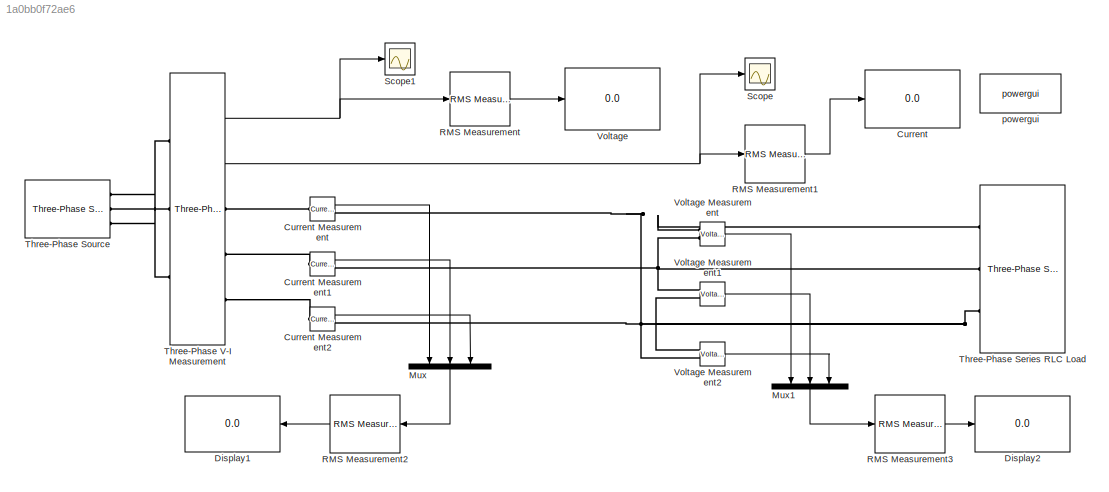
MODEL slx_1a0bb0f72ae6
KIND model
CONFIG AbsTol = auto
CONFIG EnableMultiTasking = off
CONFIG FixedStep = auto
CONFIG MaxStep = auto
CONFIG MinStep = auto
CONFIG RelTol = 1e-3
CONFIG SampleTimeConstraint = Unconstrained
CONFIG Solver = VariableStepAuto
CONFIG SolverName = VariableStepAuto
CONFIG StartTime = 0.0
CONFIG StopTime = 10.0
BLOCK [Display] Current
  Decimation = 1
  Ports = [1]
BLOCK [Reference] Current Measurement  REF=powerlib/Measurements/Current Measurement
  Ports = [0, 1, 0, 0, 0, 1, 1]
  SourceBlock = powerlib/Measurements/Current Measurement
  SourceProductBaseCode = PS
  SourceType = Current Measurement
  UserDataPersistent = on
BLOCK [Reference] Current Measurement1  REF=powerlib/Measurements/Current Measurement
  Ports = [0, 1, 0, 0, 0, 1, 1]
  SourceBlock = powerlib/Measurements/Current Measurement
  SourceProductBaseCode = PS
  SourceType = Current Measurement
  UserDataPersistent = on
BLOCK [Reference] Current Measurement2  REF=powerlib/Measurements/Current Measurement
  Ports = [0, 1, 0, 0, 0, 1, 1]
  SourceBlock = powerlib/Measurements/Current Measurement
  SourceProductBaseCode = PS
  SourceType = Current Measurement
  UserDataPersistent = on
BLOCK [Display] Display1
  Decimation = 1
  Ports = [1]
BLOCK [Display] Display2
  Decimation = 1
  Ports = [1]
BLOCK [Mux] Mux
  DisplayOption = bar
  Inputs = 3
  NameLocation = left
  Ports = [3, 1]
BLOCK [Mux] Mux1
  DisplayOption = bar
  Inputs = 3
  NameLocation = right
  Ports = [3, 1]
BLOCK [Reference] RMS Measurement  REF=eeRmsMeasurement/RMS
Measurement
  Ports = [1, 1]
  SourceBlock = eeRmsMeasurement/RMS\nMeasurement
  SourceProductBaseCode = PS
  SourceType = RMS Measurement
BLOCK [Reference] RMS Measurement1  REF=eeRmsMeasurement/RMS
Measurement
  Ports = [1, 1]
  SourceBlock = eeRmsMeasurement/RMS\nMeasurement
  SourceProductBaseCode = PS
  SourceType = RMS Measurement
BLOCK [Reference] RMS Measurement2  REF=eeRmsMeasurement/RMS
Measurement
  Ports = [1, 1]
  SourceBlock = eeRmsMeasurement/RMS\nMeasurement
  SourceProductBaseCode = PS
  SourceType = RMS Measurement
BLOCK [Reference] RMS Measurement3  REF=eeRmsMeasurement/RMS
Measurement
  Ports = [1, 1]
  SourceBlock = eeRmsMeasurement/RMS\nMeasurement
  SourceProductBaseCode = PS
  SourceType = RMS Measurement
BLOCK [Scope] Scope
  Floating = off
  NumInputPorts = 1
  Ports = [1]
  ScopeSpecificationString = Simulink.scopes.TimeScopeBlockCfg('CurrentConfiguration', extmgr.ConfigurationSet(extmgr.Configuration('Core','General UI',true),extmgr.Configuration('Core','Source UI',true),extmgr.Configuration('Sources','WiredSimulink',true,'DataLoggingVariableName','ScopeData1'),extmgr.Configuration('Visuals','Time Domain',true,'SerializedDisplays',{struct('MinYLimReal','-1134.28061','MaxYLimReal','1133.82876'...<+1593ch>
BLOCK [Scope] Scope1
  Floating = off
  NumInputPorts = 1
  Ports = [1]
  ScopeSpecificationString = Simulink.scopes.TimeScopeBlockCfg('CurrentConfiguration', extmgr.ConfigurationSet(extmgr.Configuration('Core','General UI',true),extmgr.Configuration('Core','Source UI',true),extmgr.Configuration('Sources','WiredSimulink',true),extmgr.Configuration('Visuals','Time Domain',true,'SerializedDisplays',{struct('MinYLimReal','-24917.33297','MaxYLimReal','24917.33301','YLabelReal','','MinYLimMag','   0.0...<+1564ch>
BLOCK [Reference] Three-Phase Series RLC Load  REF=powerlib/Elements/Three-Phase
Series RLC Load
  AttributesFormatString = \n
  Ports = [0, 0, 0, 0, 0, 3]
  SourceBlock = powerlib/Elements/Three-Phase\nSeries RLC Load
  SourceProductBaseCode = PS
  SourceType = Three-Phase Series RLC Load
BLOCK [Reference] Three-Phase Source  REF=powerlib/Electrical
Sources/Three-Phase Source
  Ports = [0, 0, 0, 0, 0, 0, 3]
  SourceBlock = powerlib/Electrical\nSources/Three-Phase Source
  SourceProductBaseCode = PS
  SourceType = Three-Phase Source
BLOCK [Reference] Three-Phase V-I Measurement  REF=powerlib/Measurements/Three-Phase
V-I Measurement
  Ports = [0, 2, 0, 0, 0, 3, 3]
  SourceBlock = powerlib/Measurements/Three-Phase\nV-I Measurement
  SourceProductBaseCode = PS
  SourceType = Three-Phase VI Measurement
BLOCK [Display] Voltage
  Decimation = 1
  Ports = [1]
BLOCK [Reference] Voltage Measurement  REF=powerlib/Measurements/Voltage Measurement
  Ports = [0, 1, 0, 0, 0, 2]
  SourceBlock = powerlib/Measurements/Voltage Measurement
  SourceProductBaseCode = PS
  SourceType = Voltage Measurement
  UserDataPersistent = on
BLOCK [Reference] Voltage Measurement1  REF=powerlib/Measurements/Voltage Measurement
  Ports = [0, 1, 0, 0, 0, 2]
  SourceBlock = powerlib/Measurements/Voltage Measurement
  SourceProductBaseCode = PS
  SourceType = Voltage Measurement
  UserDataPersistent = on
BLOCK [Reference] Voltage Measurement2  REF=powerlib/Measurements/Voltage Measurement
  Ports = [0, 1, 0, 0, 0, 2]
  SourceBlock = powerlib/Measurements/Voltage Measurement
  SourceProductBaseCode = PS
  SourceType = Voltage Measurement
  UserDataPersistent = on
BLOCK [Reference] powergui  REF=powerlib/powergui
  Ports = []
  Priority = 1
  SourceBlock = powerlib/powergui
  SourceProductBaseCode = PS
  SourceType = PSB option menu block
LINE Current Measurement1:1 -> Mux:2
LINE Current Measurement2:1 -> Mux:3
LINE Current Measurement:1 -> Mux:1
LINE Mux1:1 -> RMS Measurement3:1
LINE Mux:1 -> RMS Measurement2:1
LINE RMS Measurement1:1 -> Current:1
LINE RMS Measurement2:1 -> Display1:1
LINE RMS Measurement3:1 -> Display2:1
LINE RMS Measurement:1 -> Voltage:1
NET Three-Phase V-I Measurement:1 -> RMS Measurement:1, Scope1:1
NET Three-Phase V-I Measurement:2 -> RMS Measurement1:1, Scope:1
LINE Voltage Measurement1:1 -> Mux1:2
LINE Voltage Measurement2:1 -> Mux1:3
LINE Voltage Measurement:1 -> Mux1:1
PLINE Current Measurement1:LConn1 -- Three-Phase V-I Measurement:RConn2
PNET net1: Current Measurement1:RConn1 -- Three-Phase Series RLC Load:LConn2 -- Voltage Measurement1:LConn1 -- Voltage Measurement:LConn2
PLINE Current Measurement2:LConn1 -- Three-Phase V-I Measurement:RConn3
PNET net2: Current Measurement2:RConn1 -- Three-Phase Series RLC Load:LConn3 -- Voltage Measurement1:LConn2 -- Voltage Measurement2:LConn1
PLINE Current Measurement:LConn1 -- Three-Phase V-I Measurement:RConn1
PNET net3: Current Measurement:RConn1 -- Three-Phase Series RLC Load:LConn1 -- Voltage Measurement2:LConn2 -- Voltage Measurement:LConn1
PLINE Three-Phase Source:RConn1 -- Three-Phase V-I Measurement:LConn1
PLINE Three-Phase Source:RConn2 -- Three-Phase V-I Measurement:LConn2
PLINE Three-Phase Source:RConn3 -- Three-Phase V-I Measurement:LConn3
note: NET lines group one-source signal fan-out (src -> all destinations, sorted); 1:1 wires keep LINE; PNET lines group multi-terminal physical nets as a canonical sorted terminal list (undirected conserving connections); 2-terminal nets keep the pairwise PLINE form
